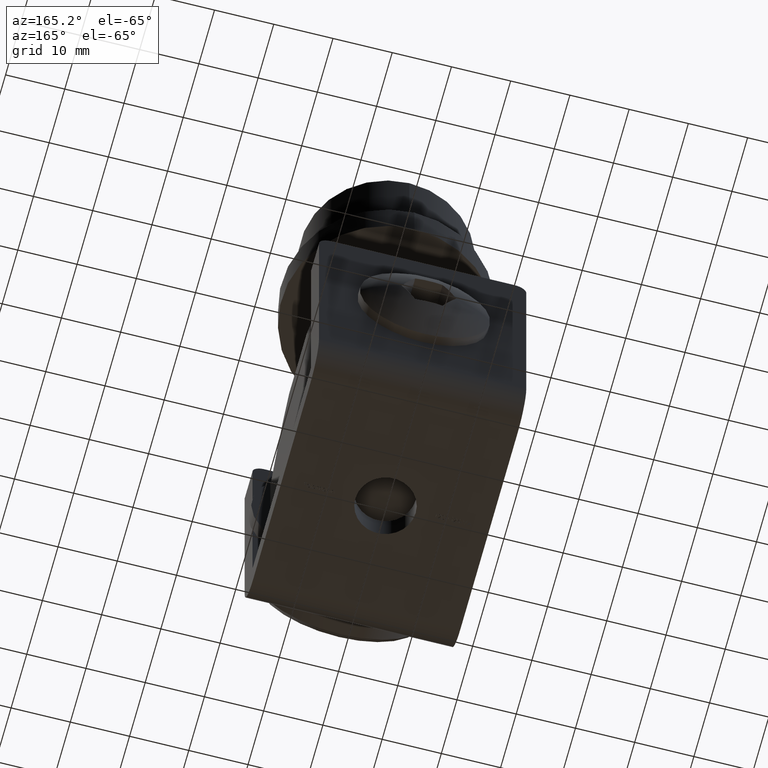
[diagram: clean part render]
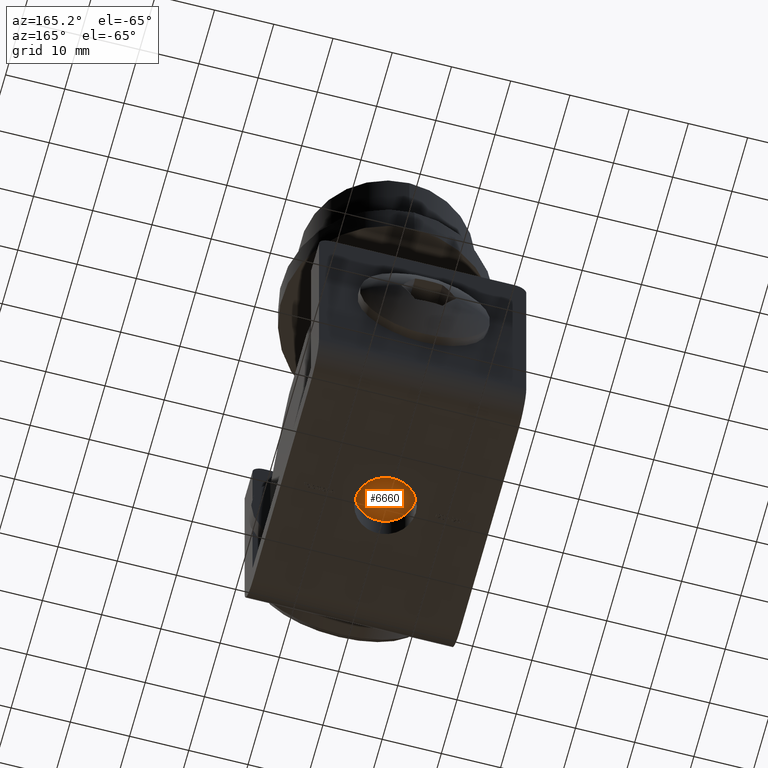
[diagram: same view with one face highlighted and labeled with its STEP entity id]
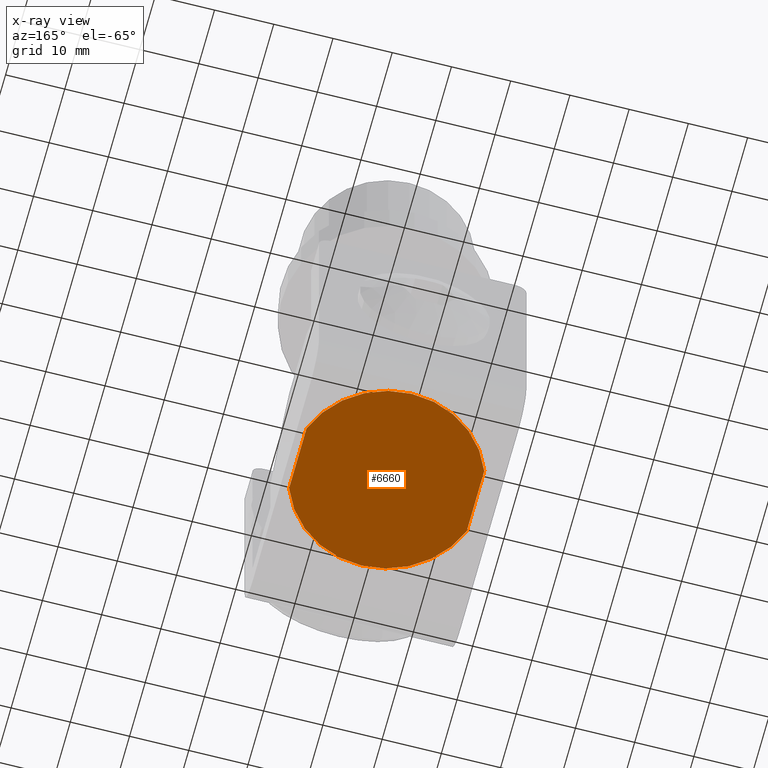
[diagram: x-ray of the same camera — body ghosted, the highlighted face saturated]
A machine part, auxiliary view. The second image highlights one B-rep face of the part: STEP entity #6660.
The next image is the same camera in x-ray: the body ghosted, the highlighted face saturated — about 0% of this face is hidden behind the body in this view.
In plain terms, the highlighted planar face has unit normal (0, 0, 1).
Its self-contained STEP definition (entity closure, byte-faithful):
#1068 = AXIS2_PLACEMENT_3D ( 'NONE', #1227, #9284, #8191 ) ;
#1227 = CARTESIAN_POINT ( 'NONE',  ( 0.000000000000000000, 0.000000000000000000, -18.25000000000000000 ) ) ;
#1501 = EDGE_CURVE ( 'NONE', #2478, #14786, #6012, .T. ) ;
#1772 = DIRECTION ( 'NONE',  ( 0.000000000000000000, 0.000000000000000000, 1.000000000000000000 ) ) ;
#1790 = DIRECTION ( 'NONE',  ( -0.000000000000000000, -1.000000000000000000, -0.000000000000000000 ) ) ;
#2301 = ORIENTED_EDGE ( 'NONE', *, *, #6226, .T. ) ;
#2478 = VERTEX_POINT ( 'NONE', #13451 ) ;
#3511 = DIRECTION ( 'NONE',  ( 0.000000000000000000, 0.000000000000000000, 1.000000000000000000 ) ) ;
#4756 = DIRECTION ( 'NONE',  ( -0.000000000000000000, -1.000000000000000000, -0.000000000000000000 ) ) ;
#5233 = AXIS2_PLACEMENT_3D ( 'NONE', #5973, #3511, #13953 ) ;
#5499 = CIRCLE ( 'NONE', #1068, 16.00491483157566464 ) ;
#5973 = CARTESIAN_POINT ( 'NONE',  ( 0.000000000000000000, 0.000000000000000000, -18.25000000000000000 ) ) ;
#6012 = CIRCLE ( 'NONE', #5233, 16.00491483157566464 ) ;
#6133 = VERTEX_POINT ( 'NONE', #13101 ) ;
#6226 = EDGE_CURVE ( 'NONE', #6490, #14786, #11489, .T. ) ;
#6359 = CARTESIAN_POINT ( 'NONE',  ( -15.00000000000000000, 17.50000000000000000, -18.25000000000000000 ) ) ;
#6490 = VERTEX_POINT ( 'NONE', #12767 ) ;
#6660 = ADVANCED_FACE ( 'NONE', ( #10153 ), #13232, .F. ) ;
#6996 = VECTOR ( 'NONE', #1790, 1000.000000000000000 ) ;
#7269 = VECTOR ( 'NONE', #4756, 1000.000000000000000 ) ;
#7555 = EDGE_CURVE ( 'NONE', #6490, #6133, #5499, .T. ) ;
#8155 = LINE ( 'NONE', #11687, #7269 ) ;
#8191 = DIRECTION ( 'NONE',  ( 1.000000000000000000, 0.000000000000000000, 0.000000000000000000 ) ) ;
#8858 = EDGE_CURVE ( 'NONE', #6133, #2478, #8155, .T. ) ;
#9280 = ORIENTED_EDGE ( 'NONE', *, *, #8858, .F. ) ;
#9284 = DIRECTION ( 'NONE',  ( 0.000000000000000000, 0.000000000000000000, 1.000000000000000000 ) ) ;
#9866 = ORIENTED_EDGE ( 'NONE', *, *, #7555, .F. ) ;
#10153 = FACE_OUTER_BOUND ( 'NONE', #10547, .T. ) ;
#10547 = EDGE_LOOP ( 'NONE', ( #9866, #2301, #13060, #9280 ) ) ;
#11489 = LINE ( 'NONE', #13404, #6996 ) ;
#11687 = CARTESIAN_POINT ( 'NONE',  ( -15.00000000000000000, 17.50000000000000000, -18.25000000000000000 ) ) ;
#12158 = AXIS2_PLACEMENT_3D ( 'NONE', #6359, #1772, #13082 ) ;
#12767 = CARTESIAN_POINT ( 'NONE',  ( 15.00000000000000000, 5.581872335156967679, -18.25000000000000000 ) ) ;
#13060 = ORIENTED_EDGE ( 'NONE', *, *, #1501, .F. ) ;
#13082 = DIRECTION ( 'NONE',  ( 1.000000000000000000, 0.000000000000000000, -0.000000000000000000 ) ) ;
#13101 = CARTESIAN_POINT ( 'NONE',  ( -15.00000000000000000, 5.581872335156957909, -18.25000000000000000 ) ) ;
#13232 = PLANE ( 'NONE',  #12158 ) ;
#13404 = CARTESIAN_POINT ( 'NONE',  ( 15.00000000000000000, 17.50000000000000000, -18.25000000000000000 ) ) ;
#13451 = CARTESIAN_POINT ( 'NONE',  ( -15.00000000000000000, -5.581872335156957909, -18.25000000000000000 ) ) ;
#13953 = DIRECTION ( 'NONE',  ( 1.000000000000000000, 0.000000000000000000, 0.000000000000000000 ) ) ;
#14120 = CARTESIAN_POINT ( 'NONE',  ( 15.00000000000000000, -5.581872335156967679, -18.25000000000000000 ) ) ;
#14786 = VERTEX_POINT ( 'NONE', #14120 ) ;